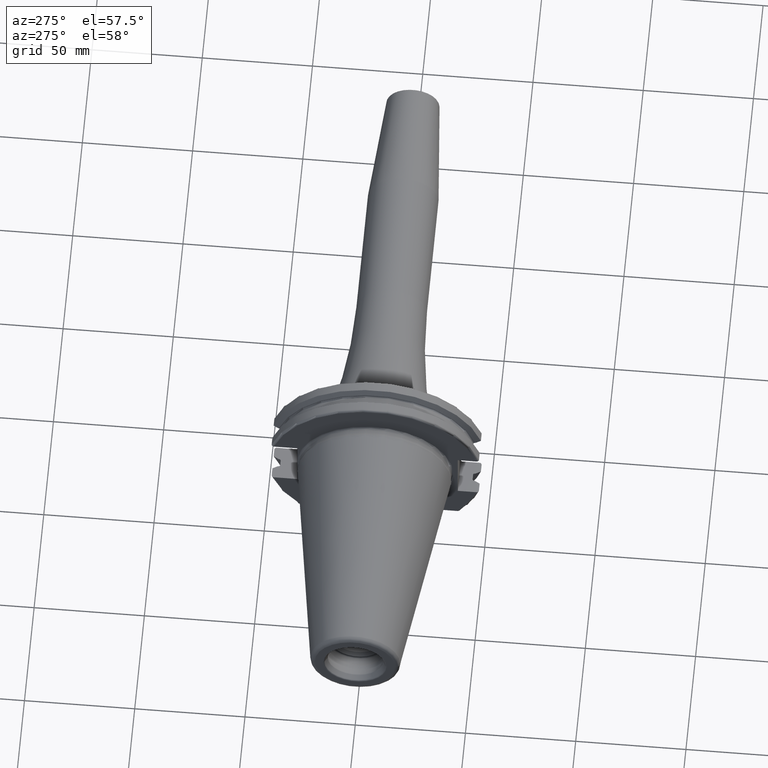
[diagram: clean part render]
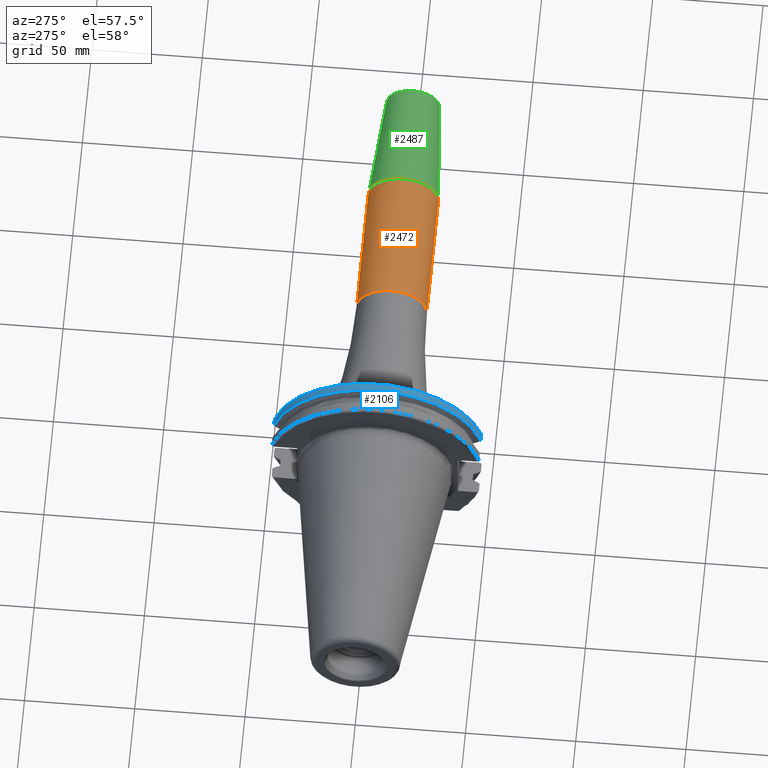
[diagram: same view with three faces highlighted in distinct colors, each labeled with its STEP entity id]
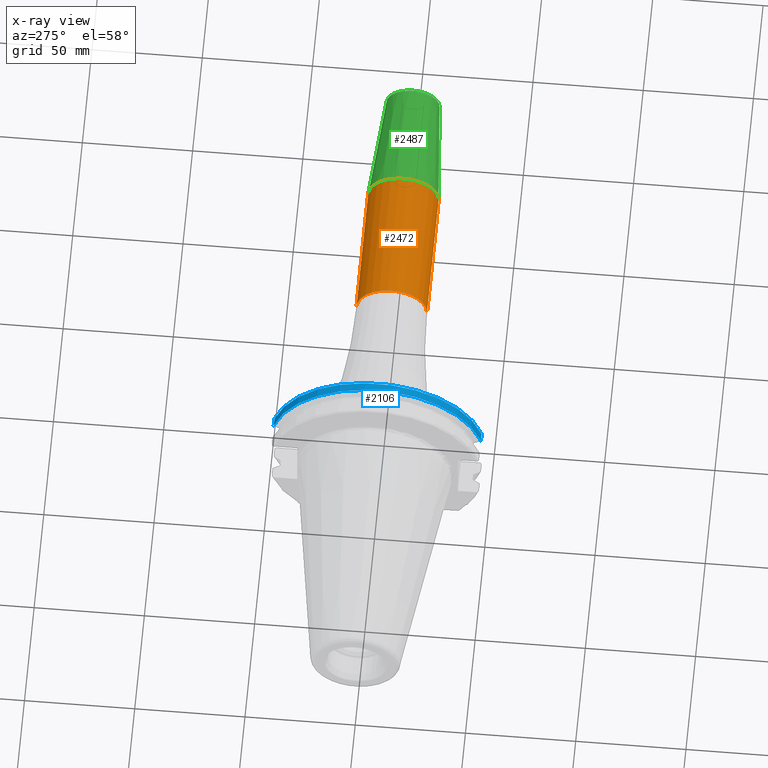
[diagram: x-ray of the same camera — body ghosted, the three highlighted faces saturated]
A machine part, auxiliary view with three faces highlighted in distinct colors.
The next image is the same camera in x-ray (body ghosted, the three faces saturated) — at least one of them is partly hidden behind the body in this view.
Their STEP definitions:

[orange] entity #2472 — the highlighted cylindrical surface (edge-blend (fillet) strip) has radius 16 mm, axis along (1, 0, 0).
#931=DIRECTION('',(-1.E0,0.E0,0.E0));
#932=VECTOR('',#931,6.012518105530E1);
#933=CARTESIAN_POINT('',(1.491751810553E2,-1.6E1,0.E0));
#934=LINE('',#933,#932);
#940=DIRECTION('',(-1.E0,0.E0,0.E0));
#941=VECTOR('',#940,6.012518105530E1);
#942=CARTESIAN_POINT('',(1.491751810553E2,1.6E1,0.E0));
#943=LINE('',#942,#941);
#944=CARTESIAN_POINT('',(8.905E1,0.E0,0.E0));
#945=DIRECTION('',(1.E0,0.E0,0.E0));
#946=DIRECTION('',(0.E0,1.E0,0.E0));
#947=AXIS2_PLACEMENT_3D('',#944,#945,#946);
#949=CARTESIAN_POINT('',(1.491751810553E2,0.E0,0.E0));
#950=DIRECTION('',(1.E0,0.E0,0.E0));
#951=DIRECTION('',(0.E0,1.E0,0.E0));
#952=AXIS2_PLACEMENT_3D('',#949,#950,#951);
#1452=CARTESIAN_POINT('',(1.491751810553E2,1.6E1,0.E0));
#1453=CARTESIAN_POINT('',(1.491751810553E2,-1.6E1,0.E0));
#1454=VERTEX_POINT('',#1452);
#1455=VERTEX_POINT('',#1453);
#1472=CARTESIAN_POINT('',(8.905E1,1.6E1,0.E0));
#1473=CARTESIAN_POINT('',(8.905E1,-1.6E1,0.E0));
#1474=VERTEX_POINT('',#1472);
#1475=VERTEX_POINT('',#1473);
#2460=CARTESIAN_POINT('',(1.00025E1,0.E0,0.E0));
#2461=DIRECTION('',(1.E0,0.E0,0.E0));
#2462=DIRECTION('',(0.E0,-1.E0,0.E0));
#2463=AXIS2_PLACEMENT_3D('',#2460,#2461,#2462);
#2464=CYLINDRICAL_SURFACE('',#2463,1.6E1);
#2465=ORIENTED_EDGE('',*,*,#2425,.F.);
#2466=ORIENTED_EDGE('',*,*,#2455,.F.);
#2468=ORIENTED_EDGE('',*,*,#2467,.T.);
#2469=ORIENTED_EDGE('',*,*,#2451,.T.);
#2470=EDGE_LOOP('',(#2465,#2466,#2468,#2469));
#2471=FACE_OUTER_BOUND('',#2470,.F.);
#2472=ADVANCED_FACE('',(#2471),#2464,.T.);
#948=CIRCLE('',#947,1.6E1);
#953=CIRCLE('',#952,1.6E1);
#2425=EDGE_CURVE('',#1474,#1475,#948,.T.);
#2451=EDGE_CURVE('',#1455,#1475,#934,.T.);
#2455=EDGE_CURVE('',#1454,#1474,#943,.T.);
#2467=EDGE_CURVE('',#1454,#1455,#953,.T.);

[blue] entity #2106 — the highlighted cylindrical surface (partial cylindrical patch) has radius 48.7375 mm, axis along (1, 0, 0).
#457=CARTESIAN_POINT('',(1.441537838583E1,4.699929686974E1,1.29E1));
#469=CARTESIAN_POINT('',(1.441537838583E1,-4.699929686974E1,1.29E1));
#489=DIRECTION('',(1.E0,0.E0,0.E0));
#490=VECTOR('',#489,3.634621614173E0);
#491=CARTESIAN_POINT('',(1.441537838583E1,4.699929686974E1,1.29E1));
#492=LINE('',#491,#490);
#493=CARTESIAN_POINT('',(1.805E1,0.E0,0.E0));
#494=DIRECTION('',(1.E0,0.E0,0.E0));
#495=DIRECTION('',(0.E0,9.643354064066E-1,2.646832521159E-1));
#496=AXIS2_PLACEMENT_3D('',#493,#494,#495);
#498=DIRECTION('',(1.E0,0.E0,0.E0));
#499=VECTOR('',#498,3.634621614173E0);
#500=CARTESIAN_POINT('',(1.441537838583E1,-4.699929686974E1,1.29E1));
#501=LINE('',#500,#499);
#502=CARTESIAN_POINT('',(1.441537838583E1,0.E0,0.E0));
#503=DIRECTION('',(1.E0,0.E0,0.E0));
#504=DIRECTION('',(0.E0,9.643354064066E-1,2.646832521159E-1));
#505=AXIS2_PLACEMENT_3D('',#502,#503,#504);
#1334=VERTEX_POINT('',#457);
#1335=VERTEX_POINT('',#469);
#1366=CARTESIAN_POINT('',(1.805E1,4.699929686974E1,1.29E1));
#1367=VERTEX_POINT('',#1366);
#1370=CARTESIAN_POINT('',(1.805E1,-4.699929686974E1,1.29E1));
#1371=VERTEX_POINT('',#1370);
#2094=CARTESIAN_POINT('',(-1.076325E2,0.E0,0.E0));
#2095=DIRECTION('',(1.E0,0.E0,0.E0));
#2096=DIRECTION('',(0.E0,-1.E0,0.E0));
#2097=AXIS2_PLACEMENT_3D('',#2094,#2095,#2096);
#2098=CYLINDRICAL_SURFACE('',#2097,4.87375E1);
#2099=ORIENTED_EDGE('',*,*,#1926,.T.);
#2101=ORIENTED_EDGE('',*,*,#2100,.T.);
#2102=ORIENTED_EDGE('',*,*,#1971,.F.);
#2103=ORIENTED_EDGE('',*,*,#2074,.F.);
#2104=EDGE_LOOP('',(#2099,#2101,#2102,#2103));
#2105=FACE_OUTER_BOUND('',#2104,.F.);
#2106=ADVANCED_FACE('',(#2105),#2098,.T.);
#497=CIRCLE('',#496,4.87375E1);
#506=CIRCLE('',#505,4.87375E1);
#1926=EDGE_CURVE('',#1334,#1367,#492,.T.);
#1971=EDGE_CURVE('',#1335,#1371,#501,.T.);
#2074=EDGE_CURVE('',#1334,#1335,#506,.T.);
#2100=EDGE_CURVE('',#1367,#1371,#497,.T.);

[green] entity #2487 — the highlighted conical surface has half-angle 4.5 deg.
#949=CARTESIAN_POINT('',(1.491751810553E2,0.E0,0.E0));
#950=DIRECTION('',(1.E0,0.E0,0.E0));
#951=DIRECTION('',(0.E0,1.E0,0.E0));
#952=AXIS2_PLACEMENT_3D('',#949,#950,#951);
#954=CARTESIAN_POINT('',(1.990784590957E2,0.E0,0.E0));
#955=DIRECTION('',(-1.E0,0.E0,0.E0));
#956=DIRECTION('',(0.E0,-1.E0,0.E0));
#957=AXIS2_PLACEMENT_3D('',#954,#955,#956);
#974=DIRECTION('',(-9.969173337331E-1,7.845909572785E-2,6.978011430438E-14));
#975=VECTOR('',#974,5.005758888107E1);
#976=CARTESIAN_POINT('',(1.990784590957E2,1.207252684207E1,
-3.491064839044E-12));
#977=LINE('',#976,#975);
#978=DIRECTION('',(-9.969173337331E-1,-7.845909572785E-2,-6.977286913640E-14));
#979=VECTOR('',#978,5.005758888107E1);
#980=CARTESIAN_POINT('',(1.990784590957E2,-1.207252684207E1,
3.490702163404E-12));
#981=LINE('',#980,#979);
#1452=CARTESIAN_POINT('',(1.491751810553E2,1.6E1,0.E0));
#1453=CARTESIAN_POINT('',(1.491751810553E2,-1.6E1,0.E0));
#1454=VERTEX_POINT('',#1452);
#1455=VERTEX_POINT('',#1453);
#1456=CARTESIAN_POINT('',(1.990784590957E2,1.207252684207E1,0.E0));
#1457=CARTESIAN_POINT('',(1.990784590957E2,-1.207252684207E1,0.E0));
#1458=VERTEX_POINT('',#1456);
#1459=VERTEX_POINT('',#1457);
#2473=CARTESIAN_POINT('',(1.741268200755E2,0.E0,0.E0));
#2474=DIRECTION('',(-1.E0,0.E0,0.E0));
#2475=DIRECTION('',(0.E0,1.E0,0.E0));
#2476=AXIS2_PLACEMENT_3D('',#2473,#2474,#2475);
#2477=CONICAL_SURFACE('',#2476,1.403626342104E1,4.5E0);
#2479=ORIENTED_EDGE('',*,*,#2478,.F.);
#2481=ORIENTED_EDGE('',*,*,#2480,.T.);
#2482=ORIENTED_EDGE('',*,*,#2467,.F.);
#2484=ORIENTED_EDGE('',*,*,#2483,.F.);
#2485=EDGE_LOOP('',(#2479,#2481,#2482,#2484));
#2486=FACE_OUTER_BOUND('',#2485,.F.);
#2487=ADVANCED_FACE('',(#2486),#2477,.T.);
#953=CIRCLE('',#952,1.6E1);
#958=CIRCLE('',#957,1.207252684207E1);
#2467=EDGE_CURVE('',#1454,#1455,#953,.T.);
#2478=EDGE_CURVE('',#1459,#1458,#958,.T.);
#2480=EDGE_CURVE('',#1459,#1455,#981,.T.);
#2483=EDGE_CURVE('',#1458,#1454,#977,.T.);